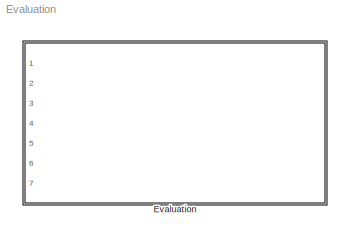
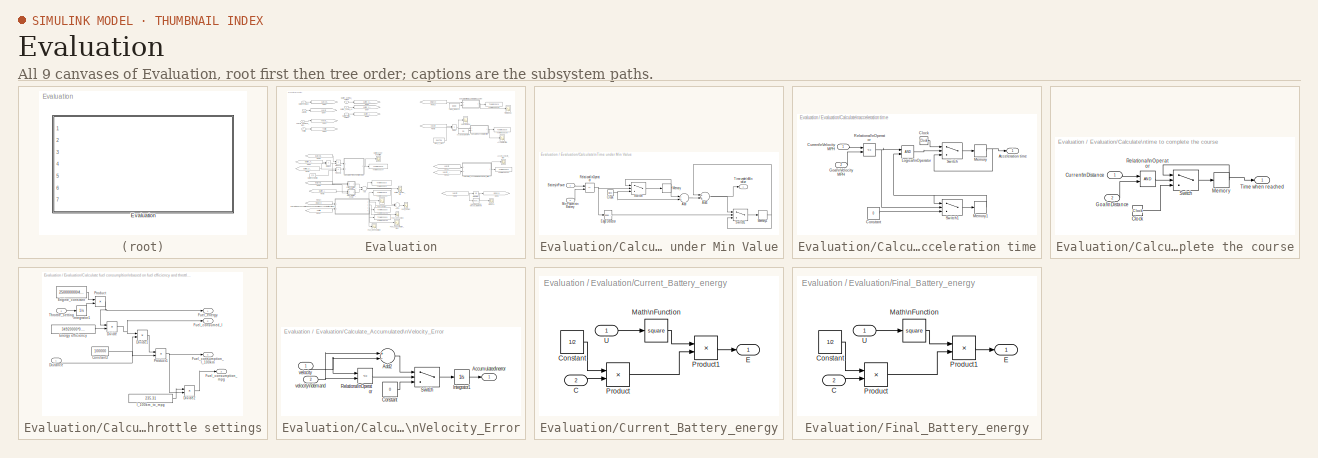
[diagram: thumbnail index - all 9 canvases of the model, root first then tree order]
MODEL Evaluation
KIND model
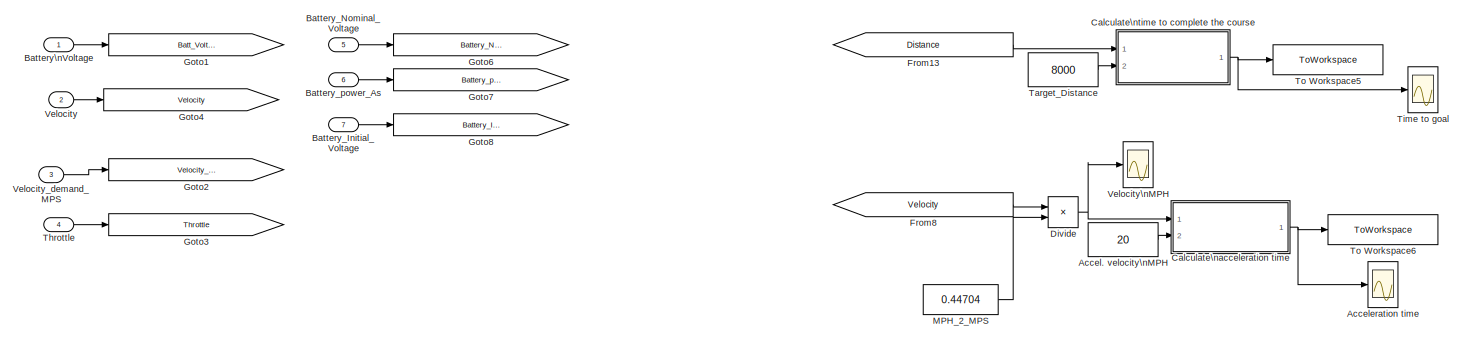
[diagram: Evaluation - part 1/2, full width, top band]
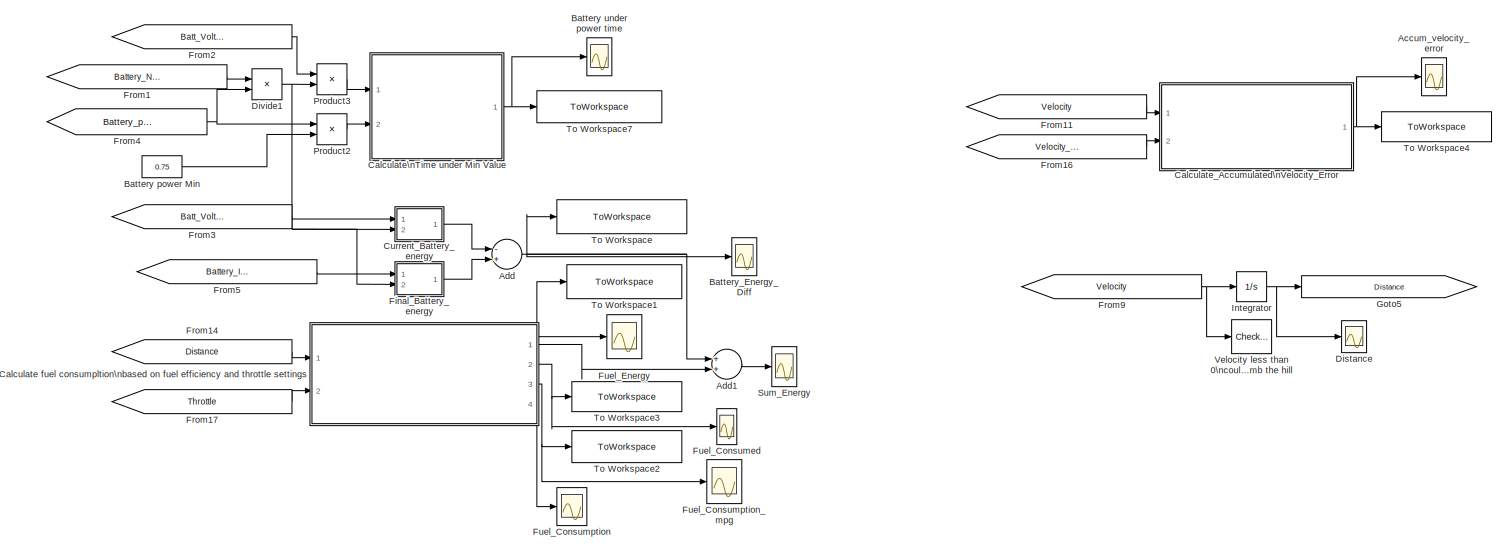
[diagram: Evaluation - part 2/2, full width, bottom band]
BLOCK [SubSystem] Evaluation
  FunctionWithSeparateData = off
  MaskHideContents = off
  MinAlgLoopOccurrences = off
  Opaque = off
  Ports = [7]
  PropExecContextOutsideSubsystem = off
  RTWSystemCode = Auto
  RequestExecContextInheritance = off
  SID = 434
BLOCK [Constant] Evaluation/Accel. velocity\nMPH
  SID = 442
  Value = 20
BLOCK [Scope] Evaluation/Acceleration time
  DataFormat = StructureWithTime
  Floating = off
  LimitDataPoints = off
  NumInputPorts = 1
  Ports = [1]
  SID = 443
  SampleTime = 0
  SaveName = ScopeData15
  TimeRange = 500
  YMax = 10
  YMin = 0
BLOCK [Scope] Evaluation/Accum_velocity_error
  DataFormat = StructureWithTime
  Floating = off
  LimitDataPoints = off
  NumInputPorts = 1
  Ports = [1]
  SID = 444
  SampleTime = 0
  SaveName = ScopeData6
  TimeRange = 500
  YMax = 500
  YMin = 0
BLOCK [Sum] Evaluation/Add
  InputSameDT = off
  Inputs = -+
  OutDataTypeStr = Inherit: Inherit via internal rule
  Ports = [2, 1]
  SID = 445
  SaturateOnIntegerOverflow = off
BLOCK [Sum] Evaluation/Add1
  InputSameDT = off
  OutDataTypeStr = Inherit: Inherit via internal rule
  Ports = [2, 1]
  SID = 446
  SaturateOnIntegerOverflow = off
BLOCK [Constant] Evaluation/Battery power Min
  SID = 447
  Value = 0.75
BLOCK [Scope] Evaluation/Battery under power time
  DataFormat = StructureWithTime
  Floating = off
  LimitDataPoints = off
  NumInputPorts = 1
  Ports = [1]
  SID = 448
  SampleTime = 0
  TimeRange = 500
  YMax = 400
  YMin = 0
BLOCK [Inport] Evaluation/Battery\nVoltage
  IconDisplay = Port number
  SID = 435
BLOCK [Scope] Evaluation/Battery_Energy_Diff
  DataFormat = StructureWithTime
  Floating = off
  LimitDataPoints = off
  NumInputPorts = 1
  Ports = [1]
  SID = 449
  SampleTime = 0
  SaveName = ScopeData20
  TimeRange = 500
  YMax = 2000000
  YMin = -500000
BLOCK [Inport] Evaluation/Battery_Initial_Voltage
  IconDisplay = Port number
  Port = 7
  SID = 441
BLOCK [Inport] Evaluation/Battery_Nominal_Voltage
  IconDisplay = Port number
  Port = 5
  SID = 439
BLOCK [Inport] Evaluation/Battery_power_As
  IconDisplay = Port number
  Port = 6
  SID = 440
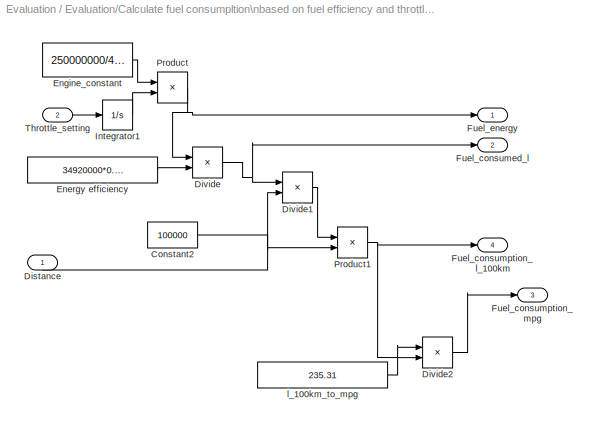
BLOCK [SubSystem] Evaluation/Calculate fuel consumpltion\nbased on fuel efficiency and throttle settings
  FunctionWithSeparateData = off
  MaskHideContents = off
  MinAlgLoopOccurrences = off
  Opaque = off
  Ports = [2, 4]
  PropExecContextOutsideSubsystem = off
  RTWSystemCode = Auto
  RequestExecContextInheritance = off
  SID = 483
BLOCK [Constant] Evaluation/Calculate fuel consumpltion\nbased on fuel efficiency and throttle settings/Constant2
  SID = 486
  Value = 100000
BLOCK [Inport] Evaluation/Calculate fuel consumpltion\nbased on fuel efficiency and throttle settings/Distance
  IconDisplay = Port number
  SID = 484
BLOCK [Product] Evaluation/Calculate fuel consumpltion\nbased on fuel efficiency and throttle settings/Divide
  InputSameDT = off
  Inputs = */
  OutDataTypeStr = Inherit: Inherit via internal rule
  Ports = [2, 1]
  RndMeth = Floor
  SID = 487
  SaturateOnIntegerOverflow = off
BLOCK [Product] Evaluation/Calculate fuel consumpltion\nbased on fuel efficiency and throttle settings/Divide1
  InputSameDT = off
  Inputs = */
  OutDataTypeStr = Inherit: Inherit via internal rule
  Ports = [2, 1]
  RndMeth = Floor
  SID = 488
  SaturateOnIntegerOverflow = off
BLOCK [Product] Evaluation/Calculate fuel consumpltion\nbased on fuel efficiency and throttle settings/Divide2
  InputSameDT = off
  Inputs = */
  OutDataTypeStr = Inherit: Inherit via internal rule
  Ports = [2, 1]
  RndMeth = Floor
  SID = 489
  SaturateOnIntegerOverflow = off
BLOCK [Constant] Evaluation/Calculate fuel consumpltion\nbased on fuel efficiency and throttle settings/Energy efficiency
  SID = 490
  Value = 34920000*0.42
BLOCK [Constant] Evaluation/Calculate fuel consumpltion\nbased on fuel efficiency and throttle settings/Engine_constant
  SID = 491
  Value = 250000000/450
BLOCK [Outport] Evaluation/Calculate fuel consumpltion\nbased on fuel efficiency and throttle settings/Fuel_consumed_l
  IconDisplay = Port number
  Port = 2
  SID = 497
BLOCK [Outport] Evaluation/Calculate fuel consumpltion\nbased on fuel efficiency and throttle settings/Fuel_consumption_l_100km
  IconDisplay = Port number
  Port = 4
  SID = 499
BLOCK [Outport] Evaluation/Calculate fuel consumpltion\nbased on fuel efficiency and throttle settings/Fuel_consumption_mpg
  IconDisplay = Port number
  Port = 3
  SID = 498
BLOCK [Outport] Evaluation/Calculate fuel consumpltion\nbased on fuel efficiency and throttle settings/Fuel_energy
  IconDisplay = Port number
  SID = 496
BLOCK [Integrator] Evaluation/Calculate fuel consumpltion\nbased on fuel efficiency and throttle settings/Integrator1
  Ports = [1, 1]
  SID = 492
BLOCK [Product] Evaluation/Calculate fuel consumpltion\nbased on fuel efficiency and throttle settings/Product
  InputSameDT = off
  OutDataTypeStr = Inherit: Inherit via internal rule
  Ports = [2, 1]
  SID = 493
  SaturateOnIntegerOverflow = off
BLOCK [Product] Evaluation/Calculate fuel consumpltion\nbased on fuel efficiency and throttle settings/Product1
  InputSameDT = off
  OutDataTypeStr = Inherit: Inherit via internal rule
  Ports = [2, 1]
  SID = 494
  SaturateOnIntegerOverflow = off
BLOCK [Inport] Evaluation/Calculate fuel consumpltion\nbased on fuel efficiency and throttle settings/Throttle_setting
  IconDisplay = Port number
  Port = 2
  SID = 485
BLOCK [Constant] Evaluation/Calculate fuel consumpltion\nbased on fuel efficiency and throttle settings/l_100km_to_mpg
  SID = 495
  Value = 235.31
BLOCK [SubSystem] Evaluation/Calculate\nTime under Min Value
  FunctionWithSeparateData = off
  MaskHideContents = off
  MinAlgLoopOccurrences = off
  Opaque = off
  Ports = [2, 1]
  PropExecContextOutsideSubsystem = off
  RTWSystemCode = Auto
  RequestExecContextInheritance = off
  SID = 450
BLOCK [Sum] Evaluation/Calculate\nTime under Min Value/Add
  InputSameDT = off
  Inputs = -+
  OutDataTypeStr = Inherit: Inherit via internal rule
  Ports = [2, 1]
  SID = 453
  SaturateOnIntegerOverflow = off
BLOCK [Sum] Evaluation/Calculate\nTime under Min Value/Add1
  InputSameDT = off
  OutDataTypeStr = Inherit: Inherit via internal rule
  Ports = [2, 1]
  SID = 454
  SaturateOnIntegerOverflow = off
BLOCK [Inport] Evaluation/Calculate\nTime under Min Value/Battery\nPower
  IconDisplay = Port number
  SID = 451
BLOCK [Clock] Evaluation/Calculate\nTime under Min Value/Clock
  Decimation = 10
  SID = 455
BLOCK [Reference] Evaluation/Calculate\nTime under Min Value/Edge Detector  REF=powerlib_extras/Control \nBlocks/Edge Detector
  DialogController = POWERSYS.PowerSysDialog
  FunctionWithSeparateData = off
  GeneratePreprocessorConditionals = off
  Ports = [1, 1]
  RTWMemSecDataConstants = Inherit from model
  RTWMemSecDataInternal = Inherit from model
  RTWMemSecDataParameters = Inherit from model
  RTWMemSecFuncExecute = Inherit from model
  RTWMemSecFuncInitTerm = Inherit from model
  SID = 456
  ShowPortLabels = none
  SourceBlock = powerlib_extras/Control \nBlocks/Edge Detector
  SourceType = Edge Detector
  SystemSampleTime = -1
  ic = 0
  model = Falling
BLOCK [Memory] Evaluation/Calculate\nTime under Min Value/Memory
  SID = 457
BLOCK [Memory] Evaluation/Calculate\nTime under Min Value/Memory1
  SID = 458
BLOCK [Inport] Evaluation/Calculate\nTime under Min Value/Min Power\nin Battery
  IconDisplay = Port number
  Port = 2
  SID = 452
BLOCK [RelationalOperator] Evaluation/Calculate\nTime under Min Value/Relational\nOperator
  InputSameDT = off
  Operator = <=
  OutDataTypeStr = boolean
  Ports = [2, 1]
  SID = 459
BLOCK [Switch] Evaluation/Calculate\nTime under Min Value/Switch
  InputSameDT = off
  SID = 460
  SaturateOnIntegerOverflow = off
BLOCK [Switch] Evaluation/Calculate\nTime under Min Value/Switch1
  InputSameDT = off
  SID = 461
  SaturateOnIntegerOverflow = off
BLOCK [Outport] Evaluation/Calculate\nTime under Min Value/Time under\nMin value
  IconDisplay = Port number
  SID = 462
BLOCK [SubSystem] Evaluation/Calculate\nacceleration time
  FunctionWithSeparateData = off
  MaskHideContents = off
  MinAlgLoopOccurrences = off
  Opaque = off
  Ports = [2, 1]
  PropExecContextOutsideSubsystem = off
  RTWSystemCode = Auto
  RequestExecContextInheritance = off
  SID = 463
BLOCK [Outport] Evaluation/Calculate\nacceleration time/Acceleration time
  IconDisplay = Port number
  SID = 474
BLOCK [Clock] Evaluation/Calculate\nacceleration time/Clock
  Decimation = 10
  SID = 466
BLOCK [Constant] Evaluation/Calculate\nacceleration time/Constant
  SID = 467
  Value = 0
BLOCK [Inport] Evaluation/Calculate\nacceleration time/Current\nVelocity MPH
  IconDisplay = Port number
  SID = 464
BLOCK [Inport] Evaluation/Calculate\nacceleration time/Goal\nVelocity MPH
  IconDisplay = Port number
  Port = 2
  SID = 465
BLOCK [Logic] Evaluation/Calculate\nacceleration time/Logical\nOperator
  AllPortsSameDT = off
  OutDataTypeStr = boolean
  Ports = [2, 1]
  SID = 468
BLOCK [Memory] Evaluation/Calculate\nacceleration time/Memory
  SID = 469
BLOCK [Memory] Evaluation/Calculate\nacceleration time/Memory1
  SID = 470
  X0 = 1
BLOCK [RelationalOperator] Evaluation/Calculate\nacceleration time/Relational\nOperator
  InputSameDT = off
  Operator = <=
  OutDataTypeStr = boolean
  Ports = [2, 1]
  SID = 471
BLOCK [Switch] Evaluation/Calculate\nacceleration time/Switch
  InputSameDT = off
  SID = 472
  SaturateOnIntegerOverflow = off
BLOCK [Switch] Evaluation/Calculate\nacceleration time/Switch1
  InputSameDT = off
  SID = 473
  SaturateOnIntegerOverflow = off
BLOCK [SubSystem] Evaluation/Calculate\ntime to complete the course
  FunctionWithSeparateData = off
  MaskHideContents = off
  MinAlgLoopOccurrences = off
  Opaque = off
  Ports = [2, 1]
  PropExecContextOutsideSubsystem = off
  RTWSystemCode = Auto
  RequestExecContextInheritance = off
  SID = 475
BLOCK [Clock] Evaluation/Calculate\ntime to complete the course/Clock
  Decimation = 10
  SID = 478
BLOCK [Inport] Evaluation/Calculate\ntime to complete the course/Current\nDistance
  IconDisplay = Port number
  SID = 476
BLOCK [Inport] Evaluation/Calculate\ntime to complete the course/Goal\nDistance
  IconDisplay = Port number
  Port = 2
  SID = 477
BLOCK [Memory] Evaluation/Calculate\ntime to complete the course/Memory
  SID = 479
BLOCK [RelationalOperator] Evaluation/Calculate\ntime to complete the course/Relational\nOperator
  InputSameDT = off
  OutDataTypeStr = boolean
  Ports = [2, 1]
  SID = 480
BLOCK [Switch] Evaluation/Calculate\ntime to complete the course/Switch
  InputSameDT = off
  SID = 481
  SaturateOnIntegerOverflow = off
BLOCK [Outport] Evaluation/Calculate\ntime to complete the course/Time when reached
  IconDisplay = Port number
  SID = 482
BLOCK [SubSystem] Evaluation/Calculate_Accumulated\nVelocity_Error
  FunctionWithSeparateData = off
  MaskHideContents = off
  MinAlgLoopOccurrences = off
  Opaque = off
  Ports = [2, 1]
  PropExecContextOutsideSubsystem = off
  RTWSystemCode = Auto
  RequestExecContextInheritance = off
  SID = 500
BLOCK [Outport] Evaluation/Calculate_Accumulated\nVelocity_Error/Accumulated\nerror
  IconDisplay = Port number
  SID = 508
BLOCK [Sum] Evaluation/Calculate_Accumulated\nVelocity_Error/Add2
  InputSameDT = off
  Inputs = +-
  OutDataTypeStr = Inherit: Inherit via internal rule
  Ports = [2, 1]
  SID = 503
  SaturateOnIntegerOverflow = off
BLOCK [Constant] Evaluation/Calculate_Accumulated\nVelocity_Error/Constant
  SID = 504
  Value = 0
BLOCK [Integrator] Evaluation/Calculate_Accumulated\nVelocity_Error/Integrator1
  Ports = [1, 1]
  SID = 505
BLOCK [RelationalOperator] Evaluation/Calculate_Accumulated\nVelocity_Error/Relational\nOperator
  InputSameDT = off
  Operator = <=
  OutDataTypeStr = boolean
  Ports = [2, 1]
  SID = 506
BLOCK [Switch] Evaluation/Calculate_Accumulated\nVelocity_Error/Switch
  InputSameDT = off
  SID = 507
  SaturateOnIntegerOverflow = off
BLOCK [Inport] Evaluation/Calculate_Accumulated\nVelocity_Error/velocity
  IconDisplay = Port number
  SID = 501
BLOCK [Inport] Evaluation/Calculate_Accumulated\nVelocity_Error/velocity\ndemand
  IconDisplay = Port number
  Port = 2
  SID = 502
BLOCK [SubSystem] Evaluation/Current_Battery_energy
  FunctionWithSeparateData = off
  MaskHideContents = off
  MinAlgLoopOccurrences = off
  Opaque = off
  Ports = [2, 1]
  PropExecContextOutsideSubsystem = off
  RTWSystemCode = Auto
  RequestExecContextInheritance = off
  SID = 509
BLOCK [Inport] Evaluation/Current_Battery_energy/C
  IconDisplay = Port number
  Port = 2
  SID = 511
BLOCK [Constant] Evaluation/Current_Battery_energy/Constant
  SID = 512
  Value = 1/2
BLOCK [Outport] Evaluation/Current_Battery_energy/E
  IconDisplay = Port number
  SID = 516
BLOCK [Math] Evaluation/Current_Battery_energy/Math\nFunction
  Operator = square
  Ports = [1, 1]
  SID = 513
BLOCK [Product] Evaluation/Current_Battery_energy/Product
  InputSameDT = off
  OutDataTypeStr = Inherit: Inherit via internal rule
  Ports = [2, 1]
  SID = 514
  SaturateOnIntegerOverflow = off
BLOCK [Product] Evaluation/Current_Battery_energy/Product1
  InputSameDT = off
  OutDataTypeStr = Inherit: Inherit via internal rule
  Ports = [2, 1]
  SID = 515
  SaturateOnIntegerOverflow = off
BLOCK [Inport] Evaluation/Current_Battery_energy/U
  IconDisplay = Port number
  SID = 510
BLOCK [Scope] Evaluation/Distance
  DataFormat = StructureWithTime
  Floating = off
  LimitDataPoints = off
  NumInputPorts = 1
  Ports = [1]
  SID = 517
  SampleTime = 0
  SaveName = ScopeData8
  TimeRange = 500
  YMax = 12000
  YMin = 0
BLOCK [Product] Evaluation/Divide
  InputSameDT = off
  Inputs = */
  OutDataTypeStr = Inherit: Inherit via internal rule
  Ports = [2, 1]
  RndMeth = Floor
  SID = 518
  SaturateOnIntegerOverflow = off
BLOCK [Product] Evaluation/Divide1
  InputSameDT = off
  Inputs = /*
  OutDataTypeStr = Inherit: Inherit via internal rule
  Ports = [2, 1]
  RndMeth = Floor
  SID = 519
  SaturateOnIntegerOverflow = off
BLOCK [SubSystem] Evaluation/Final_Battery_energy
  FunctionWithSeparateData = off
  MaskHideContents = off
  MinAlgLoopOccurrences = off
  Opaque = off
  Ports = [2, 1]
  PropExecContextOutsideSubsystem = off
  RTWSystemCode = Auto
  RequestExecContextInheritance = off
  SID = 520
BLOCK [Inport] Evaluation/Final_Battery_energy/C
  IconDisplay = Port number
  Port = 2
  SID = 522
BLOCK [Constant] Evaluation/Final_Battery_energy/Constant
  SID = 523
  Value = 1/2
BLOCK [Outport] Evaluation/Final_Battery_energy/E
  IconDisplay = Port number
  SID = 527
BLOCK [Math] Evaluation/Final_Battery_energy/Math\nFunction
  Operator = square
  Ports = [1, 1]
  SID = 524
BLOCK [Product] Evaluation/Final_Battery_energy/Product
  InputSameDT = off
  OutDataTypeStr = Inherit: Inherit via internal rule
  Ports = [2, 1]
  SID = 525
  SaturateOnIntegerOverflow = off
BLOCK [Product] Evaluation/Final_Battery_energy/Product1
  InputSameDT = off
  OutDataTypeStr = Inherit: Inherit via internal rule
  Ports = [2, 1]
  SID = 526
  SaturateOnIntegerOverflow = off
BLOCK [Inport] Evaluation/Final_Battery_energy/U
  IconDisplay = Port number
  SID = 521
BLOCK [From] Evaluation/From1
  GotoTag = Battery_Nominal_Voltage
  SID = 528
BLOCK [From] Evaluation/From11
  GotoTag = Velocity
  SID = 529
BLOCK [From] Evaluation/From13
  GotoTag = Distance
  SID = 530
BLOCK [From] Evaluation/From14
  GotoTag = Distance
  SID = 531
BLOCK [From] Evaluation/From16
  GotoTag = Velocity_Demand_MPS
  SID = 532
BLOCK [From] Evaluation/From17
  GotoTag = Throttle
  SID = 533
BLOCK [From] Evaluation/From2
  GotoTag = Batt_Voltage
  SID = 534
BLOCK [From] Evaluation/From3
  GotoTag = Batt_Voltage
  SID = 535
BLOCK [From] Evaluation/From4
  GotoTag = Battery_power_As
  SID = 536
BLOCK [From] Evaluation/From5
  GotoTag = Battery_Initial_Voltage
  SID = 537
BLOCK [From] Evaluation/From8
  GotoTag = Velocity
  SID = 538
BLOCK [From] Evaluation/From9
  GotoTag = Velocity
  SID = 539
BLOCK [Scope] Evaluation/Fuel_Consumed
  DataFormat = StructureWithTime
  Floating = off
  LimitDataPoints = off
  NumInputPorts = 1
  Ports = [1]
  SID = 540
  SampleTime = 0
  SaveName = ScopeData21
  TimeRange = 500
  YMax = 20
  YMin = 0
BLOCK [Scope] Evaluation/Fuel_Consumption
  DataFormat = StructureWithTime
  Floating = off
  LimitDataPoints = off
  NumInputPorts = 1
  Ports = [1]
  SID = 541
  SampleTime = 0
  SaveName = ScopeData22
  TimeRange = 500
  YMax = 4000
  YMin = 0
BLOCK [Scope] Evaluation/Fuel_Consumption_mpg
  DataFormat = StructureWithTime
  Floating = off
  LimitDataPoints = off
  NumInputPorts = 1
  Ports = [1]
  SID = 542
  SampleTime = 0
  SaveName = ScopeData23
  TimeRange = 500
  YMax = 2
  YMin = 0
BLOCK [Scope] Evaluation/Fuel_Energy
  DataFormat = StructureWithTime
  Floating = off
  LimitDataPoints = off
  NumInputPorts = 1
  Ports = [1]
  SID = 543
  SampleTime = 0
  SaveName = ScopeData24
  TimeRange = 500
  YMax = 300000000
  YMin = 0
BLOCK [Goto] Evaluation/Goto1
  GotoTag = Batt_Voltage
  SID = 544
  TagVisibility = local
BLOCK [Goto] Evaluation/Goto2
  GotoTag = Velocity_Demand_MPS
  SID = 545
  TagVisibility = local
BLOCK [Goto] Evaluation/Goto3
  GotoTag = Throttle
  SID = 546
  TagVisibility = local
BLOCK [Goto] Evaluation/Goto4
  GotoTag = Velocity
  SID = 547
  TagVisibility = local
BLOCK [Goto] Evaluation/Goto5
  GotoTag = Distance
  SID = 548
  TagVisibility = local
BLOCK [Goto] Evaluation/Goto6
  GotoTag = Battery_Nominal_Voltage
  SID = 549
  TagVisibility = local
BLOCK [Goto] Evaluation/Goto7
  GotoTag = Battery_power_As
  SID = 550
  TagVisibility = local
BLOCK [Goto] Evaluation/Goto8
  GotoTag = Battery_Initial_Voltage
  SID = 551
  TagVisibility = local
BLOCK [Integrator] Evaluation/Integrator
  Ports = [1, 1]
  SID = 552
BLOCK [Constant] Evaluation/MPH_2_MPS
  SID = 553
  Value = 0.44704
BLOCK [Product] Evaluation/Product2
  InputSameDT = off
  OutDataTypeStr = Inherit: Inherit via internal rule
  Ports = [2, 1]
  SID = 554
  SaturateOnIntegerOverflow = off
BLOCK [Product] Evaluation/Product3
  InputSameDT = off
  OutDataTypeStr = Inherit: Inherit via internal rule
  Ports = [2, 1]
  SID = 555
  SaturateOnIntegerOverflow = off
BLOCK [Scope] Evaluation/Sum_Energy
  DataFormat = StructureWithTime
  Floating = off
  LimitDataPoints = off
  NumInputPorts = 1
  Ports = [1]
  SID = 556
  SampleTime = 0
  SaveName = ScopeData25
  TimeRange = 500
  YMax = 14000
  YMin = 0
BLOCK [Constant] Evaluation/Target_Distance
  SID = 557
  Value = 8000
BLOCK [Inport] Evaluation/Throttle
  IconDisplay = Port number
  Port = 4
  SID = 438
BLOCK [Scope] Evaluation/Time to goal
  DataFormat = StructureWithTime
  Floating = off
  LimitDataPoints = off
  NumInputPorts = 1
  Ports = [1]
  SID = 558
  SampleTime = 0
  SaveName = ScopeData5
  TimeRange = 500
  YMax = 500
  YMin = 0
BLOCK [ToWorkspace] Evaluation/To Workspace
  MaxDataPoints = inf
  Ports = [1]
  SID = 559
  SampleTime = -1
  SaveFormat = Structure
  VariableName = Battery_Energy_Diff
BLOCK [ToWorkspace] Evaluation/To Workspace1
  MaxDataPoints = inf
  Ports = [1]
  SID = 560
  SampleTime = -1
  SaveFormat = Structure
  VariableName = Fuel_Energy
BLOCK [ToWorkspace] Evaluation/To Workspace2
  MaxDataPoints = inf
  Ports = [1]
  SID = 561
  SampleTime = -1
  SaveFormat = Structure
  VariableName = Fuel_Consumption
BLOCK [ToWorkspace] Evaluation/To Workspace3
  MaxDataPoints = inf
  Ports = [1]
  SID = 562
  SampleTime = -1
  SaveFormat = Structure
  VariableName = Fuel_Consumed
BLOCK [ToWorkspace] Evaluation/To Workspace4
  MaxDataPoints = inf
  Ports = [1]
  SID = 563
  SampleTime = -1
  SaveFormat = Structure
  VariableName = Accumulated_Error
BLOCK [ToWorkspace] Evaluation/To Workspace5
  MaxDataPoints = inf
  Ports = [1]
  SID = 564
  SampleTime = -1
  SaveFormat = Structure
  VariableName = Time_To_Complete
BLOCK [ToWorkspace] Evaluation/To Workspace6
  MaxDataPoints = inf
  Ports = [1]
  SID = 565
  SampleTime = -1
  SaveFormat = Structure
  VariableName = Acceleration_time
BLOCK [ToWorkspace] Evaluation/To Workspace7
  MaxDataPoints = inf
  Ports = [1]
  SID = 566
  SampleTime = -1
  SaveFormat = Structure
  VariableName = Battery_time_Below_TH
BLOCK [Inport] Evaluation/Velocity
  IconDisplay = Port number
  Port = 2
  SID = 436
BLOCK [Reference] Evaluation/Velocity less than 0\ncould not climb the hill  REF=simulink/Model\nVerification/Check Static \nLower Bound
  Description = 0 <= u
  FunctionWithSeparateData = off
  GeneratePreprocessorConditionals = off
  Ports = [1]
  RTWMemSecDataConstants = Inherit from model
  RTWMemSecDataInternal = Inherit from model
  RTWMemSecDataParameters = Inherit from model
  RTWMemSecFuncExecute = Inherit from model
  RTWMemSecFuncInitTerm = Inherit from model
  SID = 568
  ShowPortLabels = FromPortIcon
  SourceBlock = simulink/Model\nVerification/Check Static \nLower Bound
  SourceType = Checks_SMin
  SystemSampleTime = -1
  enabled = on
  export = off
  icon = graphic
  min = 0
  min_included = on
  stopWhenAssertionFail = on
BLOCK [Scope] Evaluation/Velocity\nMPH
  DataFormat = StructureWithTime
  Floating = off
  LimitDataPoints = off
  NumInputPorts = 1
  Ports = [1]
  SID = 567
  SampleTime = 0
  SaveName = ScopeData13
  TimeRange = 500
  YMax = 60
  YMin = 0
BLOCK [Inport] Evaluation/Velocity_demand_MPS
  IconDisplay = Port number
  Port = 3
  SID = 437
LINE Evaluation/Accel. velocity\nMPH:1 -> Evaluation/Calculate\nacceleration time:2
LINE Evaluation/Add1:1 -> Evaluation/Sum_Energy:1
NET Evaluation/Add:1 -> Evaluation/Add1:1, Evaluation/Battery_Energy_Diff:1, Evaluation/To Workspace:1
LINE Evaluation/Battery power Min:1 -> Evaluation/Product2:2
LINE Evaluation/Battery\nVoltage:1 -> Evaluation/Goto1:1
LINE Evaluation/Battery_Initial_Voltage:1 -> Evaluation/Goto8:1
LINE Evaluation/Battery_Nominal_Voltage:1 -> Evaluation/Goto6:1
LINE Evaluation/Battery_power_As:1 -> Evaluation/Goto7:1
LINE Evaluation/Calculate fuel consumpltion\nbased on fuel efficiency and throttle settings/Constant2:1 -> Evaluation/Calculate fuel consumpltion\nbased on fuel efficiency and throttle settings/Product1:2
LINE Evaluation/Calculate fuel consumpltion\nbased on fuel efficiency and throttle settings/Distance:1 -> Evaluation/Calculate fuel consumpltion\nbased on fuel efficiency and throttle settings/Divide1:2
LINE Evaluation/Calculate fuel consumpltion\nbased on fuel efficiency and throttle settings/Divide1:1 -> Evaluation/Calculate fuel consumpltion\nbased on fuel efficiency and throttle settings/Product1:1
LINE Evaluation/Calculate fuel consumpltion\nbased on fuel efficiency and throttle settings/Divide2:1 -> Evaluation/Calculate fuel consumpltion\nbased on fuel efficiency and throttle settings/Fuel_consumption_mpg:1
NET Evaluation/Calculate fuel consumpltion\nbased on fuel efficiency and throttle settings/Divide:1 -> Evaluation/Calculate fuel consumpltion\nbased on fuel efficiency and throttle settings/Divide1:1, Evaluation/Calculate fuel consumpltion\nbased on fuel efficiency and throttle settings/Fuel_consumed_l:1
LINE Evaluation/Calculate fuel consumpltion\nbased on fuel efficiency and throttle settings/Energy efficiency:1 -> Evaluation/Calculate fuel consumpltion\nbased on fuel efficiency and throttle settings/Divide:2
LINE Evaluation/Calculate fuel consumpltion\nbased on fuel efficiency and throttle settings/Engine_constant:1 -> Evaluation/Calculate fuel consumpltion\nbased on fuel efficiency and throttle settings/Product:1
LINE Evaluation/Calculate fuel consumpltion\nbased on fuel efficiency and throttle settings/Integrator1:1 -> Evaluation/Calculate fuel consumpltion\nbased on fuel efficiency and throttle settings/Product:2
NET Evaluation/Calculate fuel consumpltion\nbased on fuel efficiency and throttle settings/Product1:1 -> Evaluation/Calculate fuel consumpltion\nbased on fuel efficiency and throttle settings/Divide2:2, Evaluation/Calculate fuel consumpltion\nbased on fuel efficiency and throttle settings/Fuel_consumption_l_100km:1
NET Evaluation/Calculate fuel consumpltion\nbased on fuel efficiency and throttle settings/Product:1 -> Evaluation/Calculate fuel consumpltion\nbased on fuel efficiency and throttle settings/Divide:1, Evaluation/Calculate fuel consumpltion\nbased on fuel efficiency and throttle settings/Fuel_energy:1
LINE Evaluation/Calculate fuel consumpltion\nbased on fuel efficiency and throttle settings/Throttle_setting:1 -> Evaluation/Calculate fuel consumpltion\nbased on fuel efficiency and throttle settings/Integrator1:1
LINE Evaluation/Calculate fuel consumpltion\nbased on fuel efficiency and throttle settings/l_100km_to_mpg:1 -> Evaluation/Calculate fuel consumpltion\nbased on fuel efficiency and throttle settings/Divide2:1
NET Evaluation/Calculate fuel consumpltion\nbased on fuel efficiency and throttle settings:1 -> Evaluation/Add1:2, Evaluation/Fuel_Energy:1, Evaluation/To Workspace1:1
NET Evaluation/Calculate fuel consumpltion\nbased on fuel efficiency and throttle settings:2 -> Evaluation/Fuel_Consumed:1, Evaluation/To Workspace3:1
NET Evaluation/Calculate fuel consumpltion\nbased on fuel efficiency and throttle settings:3 -> Evaluation/Fuel_Consumption_mpg:1, Evaluation/To Workspace2:1
LINE Evaluation/Calculate fuel consumpltion\nbased on fuel efficiency and throttle settings:4 -> Evaluation/Fuel_Consumption:1
NET Evaluation/Calculate\nTime under Min Value/Add1:1 -> Evaluation/Calculate\nTime under Min Value/Switch1:1, Evaluation/Calculate\nTime under Min Value/Time under\nMin value:1
LINE Evaluation/Calculate\nTime under Min Value/Add:1 -> Evaluation/Calculate\nTime under Min Value/Add1:2
LINE Evaluation/Calculate\nTime under Min Value/Battery\nPower:1 -> Evaluation/Calculate\nTime under Min Value/Relational\nOperator:1
NET Evaluation/Calculate\nTime under Min Value/Clock:1 -> Evaluation/Calculate\nTime under Min Value/Add:2, Evaluation/Calculate\nTime under Min Value/Switch:3
LINE Evaluation/Calculate\nTime under Min Value/Edge Detector:1 -> Evaluation/Calculate\nTime under Min Value/Switch1:2
NET Evaluation/Calculate\nTime under Min Value/Memory1:1 -> Evaluation/Calculate\nTime under Min Value/Add1:1, Evaluation/Calculate\nTime under Min Value/Switch1:3
NET Evaluation/Calculate\nTime under Min Value/Memory:1 -> Evaluation/Calculate\nTime under Min Value/Add:1, Evaluation/Calculate\nTime under Min Value/Switch:1
LINE Evaluation/Calculate\nTime under Min Value/Min Power\nin Battery:1 -> Evaluation/Calculate\nTime under Min Value/Relational\nOperator:2
NET Evaluation/Calculate\nTime under Min Value/Relational\nOperator:1 -> Evaluation/Calculate\nTime under Min Value/Edge Detector:1, Evaluation/Calculate\nTime under Min Value/Switch:2
LINE Evaluation/Calculate\nTime under Min Value/Switch1:1 -> Evaluation/Calculate\nTime under Min Value/Memory1:1
LINE Evaluation/Calculate\nTime under Min Value/Switch:1 -> Evaluation/Calculate\nTime under Min Value/Memory:1
NET Evaluation/Calculate\nTime under Min Value:1 -> Evaluation/Battery under power time:1, Evaluation/To Workspace7:1
LINE Evaluation/Calculate\nacceleration time/Clock:1 -> Evaluation/Calculate\nacceleration time/Switch:1
LINE Evaluation/Calculate\nacceleration time/Constant:1 -> Evaluation/Calculate\nacceleration time/Switch1:3
LINE Evaluation/Calculate\nacceleration time/Current\nVelocity MPH:1 -> Evaluation/Calculate\nacceleration time/Relational\nOperator:1
LINE Evaluation/Calculate\nacceleration time/Goal\nVelocity MPH:1 -> Evaluation/Calculate\nacceleration time/Relational\nOperator:2
LINE Evaluation/Calculate\nacceleration time/Logical\nOperator:1 -> Evaluation/Calculate\nacceleration time/Switch:2
NET Evaluation/Calculate\nacceleration time/Memory1:1 -> Evaluation/Calculate\nacceleration time/Logical\nOperator:2, Evaluation/Calculate\nacceleration time/Switch1:1
NET Evaluation/Calculate\nacceleration time/Memory:1 -> Evaluation/Calculate\nacceleration time/Acceleration time:1, Evaluation/Calculate\nacceleration time/Switch:3
NET Evaluation/Calculate\nacceleration time/Relational\nOperator:1 -> Evaluation/Calculate\nacceleration time/Logical\nOperator:1, Evaluation/Calculate\nacceleration time/Switch1:2
LINE Evaluation/Calculate\nacceleration time/Switch1:1 -> Evaluation/Calculate\nacceleration time/Memory1:1
LINE Evaluation/Calculate\nacceleration time/Switch:1 -> Evaluation/Calculate\nacceleration time/Memory:1
NET Evaluation/Calculate\nacceleration time:1 -> Evaluation/Acceleration time:1, Evaluation/To Workspace6:1
LINE Evaluation/Calculate\ntime to complete the course/Clock:1 -> Evaluation/Calculate\ntime to complete the course/Switch:3
LINE Evaluation/Calculate\ntime to complete the course/Current\nDistance:1 -> Evaluation/Calculate\ntime to complete the course/Relational\nOperator:1
LINE Evaluation/Calculate\ntime to complete the course/Goal\nDistance:1 -> Evaluation/Calculate\ntime to complete the course/Relational\nOperator:2
NET Evaluation/Calculate\ntime to complete the course/Memory:1 -> Evaluation/Calculate\ntime to complete the course/Switch:1, Evaluation/Calculate\ntime to complete the course/Time when reached:1
LINE Evaluation/Calculate\ntime to complete the course/Relational\nOperator:1 -> Evaluation/Calculate\ntime to complete the course/Switch:2
LINE Evaluation/Calculate\ntime to complete the course/Switch:1 -> Evaluation/Calculate\ntime to complete the course/Memory:1
NET Evaluation/Calculate\ntime to complete the course:1 -> Evaluation/Time to goal:1, Evaluation/To Workspace5:1
LINE Evaluation/Calculate_Accumulated\nVelocity_Error/Add2:1 -> Evaluation/Calculate_Accumulated\nVelocity_Error/Switch:1
LINE Evaluation/Calculate_Accumulated\nVelocity_Error/Constant:1 -> Evaluation/Calculate_Accumulated\nVelocity_Error/Switch:3
LINE Evaluation/Calculate_Accumulated\nVelocity_Error/Integrator1:1 -> Evaluation/Calculate_Accumulated\nVelocity_Error/Accumulated\nerror:1
LINE Evaluation/Calculate_Accumulated\nVelocity_Error/Relational\nOperator:1 -> Evaluation/Calculate_Accumulated\nVelocity_Error/Switch:2
LINE Evaluation/Calculate_Accumulated\nVelocity_Error/Switch:1 -> Evaluation/Calculate_Accumulated\nVelocity_Error/Integrator1:1
NET Evaluation/Calculate_Accumulated\nVelocity_Error/velocity:1 -> Evaluation/Calculate_Accumulated\nVelocity_Error/Add2:2, Evaluation/Calculate_Accumulated\nVelocity_Error/Relational\nOperator:1
NET Evaluation/Calculate_Accumulated\nVelocity_Error/velocity\ndemand:1 -> Evaluation/Calculate_Accumulated\nVelocity_Error/Add2:1, Evaluation/Calculate_Accumulated\nVelocity_Error/Relational\nOperator:2
NET Evaluation/Calculate_Accumulated\nVelocity_Error:1 -> Evaluation/Accum_velocity_error:1, Evaluation/To Workspace4:1
LINE Evaluation/Current_Battery_energy/C:1 -> Evaluation/Current_Battery_energy/Product:2
LINE Evaluation/Current_Battery_energy/Constant:1 -> Evaluation/Current_Battery_energy/Product:1
LINE Evaluation/Current_Battery_energy/Math\nFunction:1 -> Evaluation/Current_Battery_energy/Product1:1
LINE Evaluation/Current_Battery_energy/Product1:1 -> Evaluation/Current_Battery_energy/E:1
LINE Evaluation/Current_Battery_energy/Product:1 -> Evaluation/Current_Battery_energy/Product1:2
LINE Evaluation/Current_Battery_energy/U:1 -> Evaluation/Current_Battery_energy/Math\nFunction:1
LINE Evaluation/Current_Battery_energy:1 -> Evaluation/Add:1
NET Evaluation/Divide1:1 -> Evaluation/Current_Battery_energy:2, Evaluation/Final_Battery_energy:2, Evaluation/Product3:2
NET Evaluation/Divide:1 -> Evaluation/Calculate\nacceleration time:1, Evaluation/Velocity\nMPH:1
LINE Evaluation/Final_Battery_energy/C:1 -> Evaluation/Final_Battery_energy/Product:2
LINE Evaluation/Final_Battery_energy/Constant:1 -> Evaluation/Final_Battery_energy/Product:1
LINE Evaluation/Final_Battery_energy/Math\nFunction:1 -> Evaluation/Final_Battery_energy/Product1:1
LINE Evaluation/Final_Battery_energy/Product1:1 -> Evaluation/Final_Battery_energy/E:1
LINE Evaluation/Final_Battery_energy/Product:1 -> Evaluation/Final_Battery_energy/Product1:2
LINE Evaluation/Final_Battery_energy/U:1 -> Evaluation/Final_Battery_energy/Math\nFunction:1
LINE Evaluation/Final_Battery_energy:1 -> Evaluation/Add:2
LINE Evaluation/From11:1 -> Evaluation/Calculate_Accumulated\nVelocity_Error:1
LINE Evaluation/From13:1 -> Evaluation/Calculate\ntime to complete the course:1
LINE Evaluation/From14:1 -> Evaluation/Calculate fuel consumpltion\nbased on fuel efficiency and throttle settings:1
LINE Evaluation/From16:1 -> Evaluation/Calculate_Accumulated\nVelocity_Error:2
LINE Evaluation/From17:1 -> Evaluation/Calculate fuel consumpltion\nbased on fuel efficiency and throttle settings:2
LINE Evaluation/From1:1 -> Evaluation/Divide1:1
LINE Evaluation/From2:1 -> Evaluation/Product3:1
LINE Evaluation/From3:1 -> Evaluation/Current_Battery_energy:1
NET Evaluation/From4:1 -> Evaluation/Divide1:2, Evaluation/Product2:1
LINE Evaluation/From5:1 -> Evaluation/Final_Battery_energy:1
LINE Evaluation/From8:1 -> Evaluation/Divide:1
NET Evaluation/From9:1 -> Evaluation/Integrator:1, Evaluation/Velocity less than 0\ncould not climb the hill:1
NET Evaluation/Integrator:1 -> Evaluation/Distance:1, Evaluation/Goto5:1
LINE Evaluation/MPH_2_MPS:1 -> Evaluation/Divide:2
LINE Evaluation/Product2:1 -> Evaluation/Calculate\nTime under Min Value:2
LINE Evaluation/Product3:1 -> Evaluation/Calculate\nTime under Min Value:1
LINE Evaluation/Target_Distance:1 -> Evaluation/Calculate\ntime to complete the course:2
LINE Evaluation/Throttle:1 -> Evaluation/Goto3:1
LINE Evaluation/Velocity:1 -> Evaluation/Goto4:1
LINE Evaluation/Velocity_demand_MPS:1 -> Evaluation/Goto2:1
note: NET lines group one-source signal fan-out (src -> all destinations, sorted); 1:1 wires keep LINE
